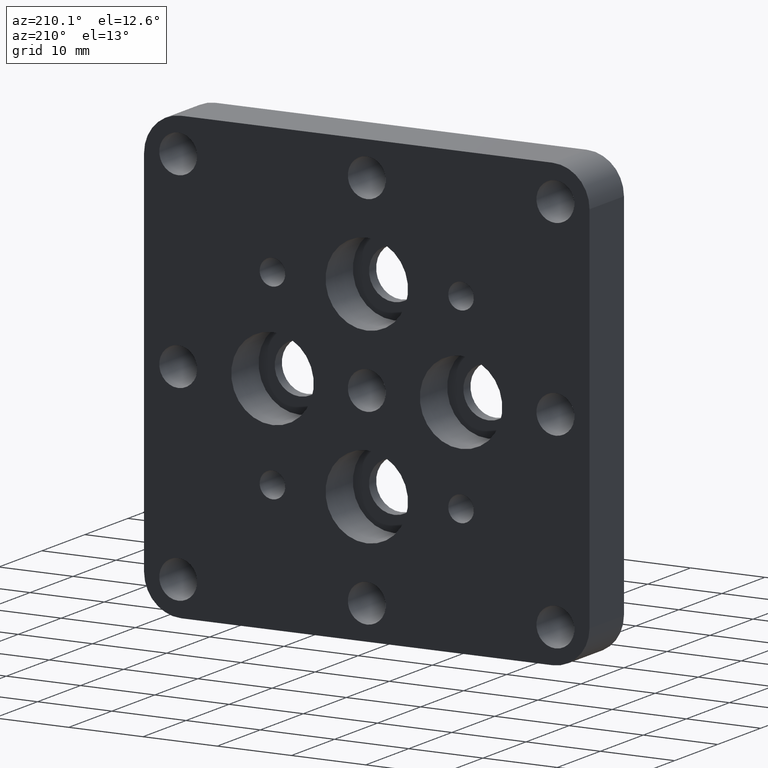
[diagram: clean part render]
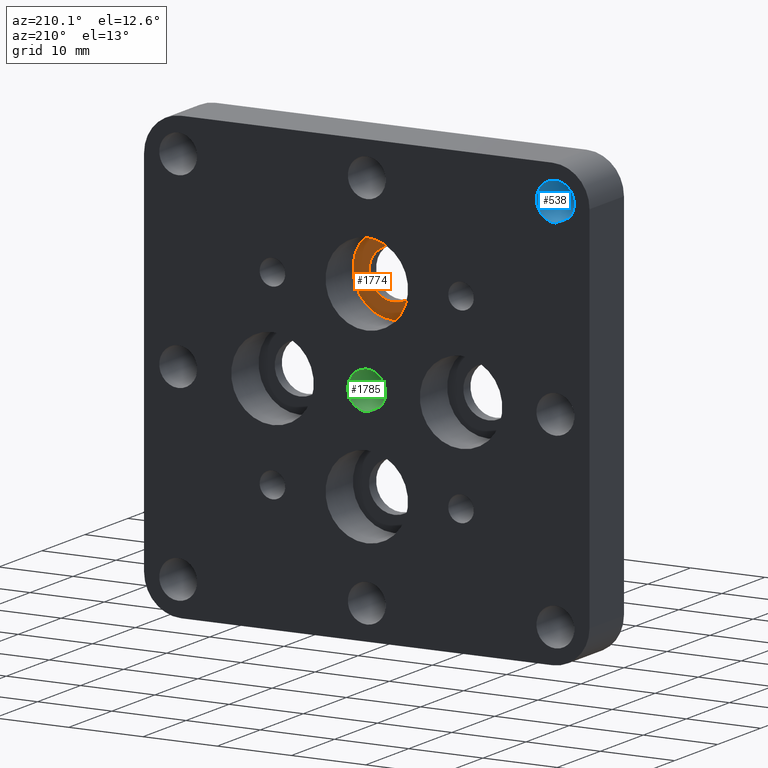
[diagram: same view with three faces highlighted in distinct colors, each labeled with its STEP entity id]
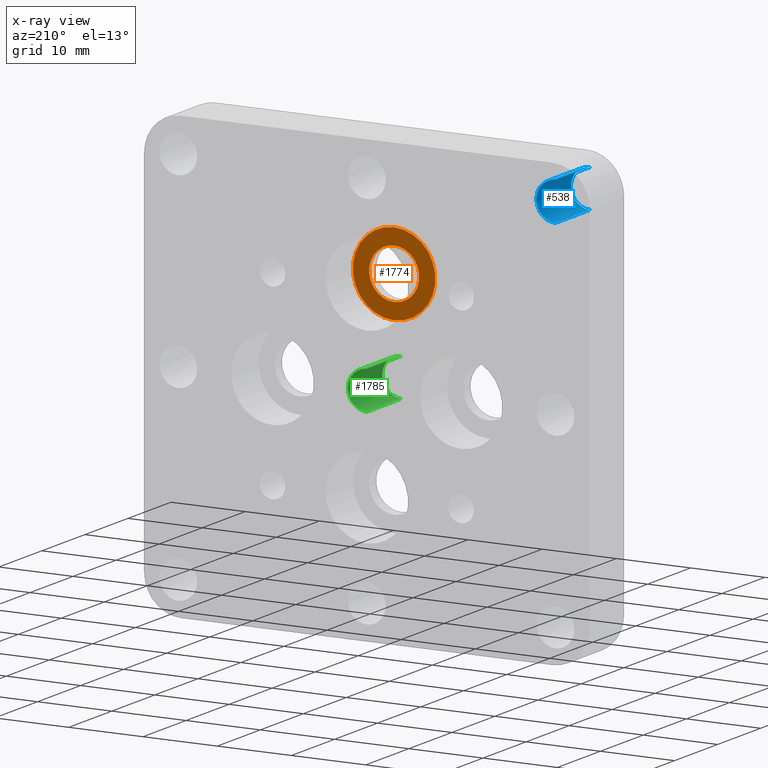
[diagram: x-ray of the same camera — body ghosted, the three highlighted faces saturated]
A machine part, auxiliary view with three faces highlighted in distinct colors.
The next image is the same camera in x-ray (body ghosted, the three faces saturated) — at least one of them is partly hidden behind the body in this view.
Their STEP definitions:

[orange] entity #1774 — the highlighted planar face has unit normal (0, -1, 0).
#76 = CIRCLE ( 'NONE', #1384, 5.556249999999998600 ) ;
#89 = ORIENTED_EDGE ( 'NONE', *, *, #1922, .T. ) ;
#117 = DIRECTION ( 'NONE',  ( -0.0000000000000000000, 1.000000000000000000, -0.0000000000000000000 ) ) ;
#123 = DIRECTION ( 'NONE',  ( 0.0000000000000000000, 0.0000000000000000000, 1.000000000000000000 ) ) ;
#175 = CARTESIAN_POINT ( 'NONE',  ( 0.0000000000000000000, 1.650000000000000400, 12.69999999999999900 ) ) ;
#205 = VERTEX_POINT ( 'NONE', #386 ) ;
#296 = FACE_BOUND ( 'NONE', #1335, .T. ) ;
#320 = CIRCLE ( 'NONE', #545, 5.556249999999998600 ) ;
#333 = VERTEX_POINT ( 'NONE', #1347 ) ;
#386 = CARTESIAN_POINT ( 'NONE',  ( 6.804443777762479200E-016, 1.650000000000000400, 7.143750000000001600 ) ) ;
#403 = PLANE ( 'NONE',  #915 ) ;
#517 = EDGE_CURVE ( 'NONE', #1441, #333, #1755, .T. ) ;
#543 = AXIS2_PLACEMENT_3D ( 'NONE', #1859, #1556, #637 ) ;
#545 = AXIS2_PLACEMENT_3D ( 'NONE', #1773, #861, #1920 ) ;
#584 = VERTEX_POINT ( 'NONE', #785 ) ;
#637 = DIRECTION ( 'NONE',  ( 0.0000000000000000000, 0.0000000000000000000, 1.000000000000000000 ) ) ;
#661 = CIRCLE ( 'NONE', #958, 3.378199999999997900 ) ;
#752 = ORIENTED_EDGE ( 'NONE', *, *, #1540, .T. ) ;
#785 = CARTESIAN_POINT ( 'NONE',  ( 0.0000000000000000000, 1.650000000000000400, 18.25624999999999800 ) ) ;
#786 = EDGE_CURVE ( 'NONE', #333, #1441, #661, .T. ) ;
#837 = ORIENTED_EDGE ( 'NONE', *, *, #517, .F. ) ;
#861 = DIRECTION ( 'NONE',  ( -0.0000000000000000000, 1.000000000000000000, -0.0000000000000000000 ) ) ;
#862 = EDGE_LOOP ( 'NONE', ( #752, #89 ) ) ;
#915 = AXIS2_PLACEMENT_3D ( 'NONE', #1758, #1589, #1594 ) ;
#958 = AXIS2_PLACEMENT_3D ( 'NONE', #1012, #117, #123 ) ;
#1012 = CARTESIAN_POINT ( 'NONE',  ( 0.0000000000000000000, 1.650000000000000400, 12.69999999999999900 ) ) ;
#1173 = CARTESIAN_POINT ( 'NONE',  ( 0.0000000000000000000, 1.650000000000000400, 16.07819999999999900 ) ) ;
#1190 = ORIENTED_EDGE ( 'NONE', *, *, #786, .F. ) ;
#1335 = EDGE_LOOP ( 'NONE', ( #837, #1190 ) ) ;
#1347 = CARTESIAN_POINT ( 'NONE',  ( 4.137101816879588000E-016, 1.650000000000000400, 9.321800000000001400 ) ) ;
#1368 = DIRECTION ( 'NONE',  ( 0.0000000000000000000, 0.0000000000000000000, 1.000000000000000000 ) ) ;
#1384 = AXIS2_PLACEMENT_3D ( 'NONE', #175, #1672, #1368 ) ;
#1441 = VERTEX_POINT ( 'NONE', #1173 ) ;
#1540 = EDGE_CURVE ( 'NONE', #584, #205, #76, .T. ) ;
#1556 = DIRECTION ( 'NONE',  ( -0.0000000000000000000, 1.000000000000000000, -0.0000000000000000000 ) ) ;
#1589 = DIRECTION ( 'NONE',  ( 0.0000000000000000000, -1.000000000000000000, 0.0000000000000000000 ) ) ;
#1594 = DIRECTION ( 'NONE',  ( 0.0000000000000000000, -0.0000000000000000000, -1.000000000000000000 ) ) ;
#1672 = DIRECTION ( 'NONE',  ( -0.0000000000000000000, 1.000000000000000000, -0.0000000000000000000 ) ) ;
#1755 = CIRCLE ( 'NONE', #543, 3.378199999999997900 ) ;
#1758 = CARTESIAN_POINT ( 'NONE',  ( 3.378199999999998800, 1.650000000000000400, 12.69999999999999900 ) ) ;
#1773 = CARTESIAN_POINT ( 'NONE',  ( 0.0000000000000000000, 1.650000000000000400, 12.69999999999999900 ) ) ;
#1774 = ADVANCED_FACE ( 'NONE', ( #296, #1845 ), #403, .F. ) ;
#1845 = FACE_OUTER_BOUND ( 'NONE', #862, .T. ) ;
#1859 = CARTESIAN_POINT ( 'NONE',  ( 0.0000000000000000000, 1.650000000000000400, 12.69999999999999900 ) ) ;
#1920 = DIRECTION ( 'NONE',  ( 0.0000000000000000000, 0.0000000000000000000, 1.000000000000000000 ) ) ;
#1922 = EDGE_CURVE ( 'NONE', #205, #584, #320, .T. ) ;

[blue] entity #538 — the highlighted cylindrical surface (edge-blend (fillet) strip) has radius 2.5527 mm, axis along (-0, 1, -0).
#36 = DIRECTION ( 'NONE',  ( 0.0000000000000000000, 0.0000000000000000000, 1.000000000000000000 ) ) ;
#42 = DIRECTION ( 'NONE',  ( 0.0000000000000000000, 0.0000000000000000000, 1.000000000000000000 ) ) ;
#113 = CARTESIAN_POINT ( 'NONE',  ( -25.39999999999999500, 8.000000000000000000, 22.84730000000000800 ) ) ;
#181 = ORIENTED_EDGE ( 'NONE', *, *, #506, .F. ) ;
#209 = DIRECTION ( 'NONE',  ( -0.0000000000000000000, 1.000000000000000000, -0.0000000000000000000 ) ) ;
#250 = EDGE_CURVE ( 'NONE', #883, #779, #251, .T. ) ;
#251 = LINE ( 'NONE', #113, #602 ) ;
#287 = DIRECTION ( 'NONE',  ( -0.0000000000000000000, 1.000000000000000000, -0.0000000000000000000 ) ) ;
#335 = CARTESIAN_POINT ( 'NONE',  ( -25.39999999999999500, 8.000000000000000000, 25.40000000000000600 ) ) ;
#336 = ORIENTED_EDGE ( 'NONE', *, *, #1909, .T. ) ;
#405 = CARTESIAN_POINT ( 'NONE',  ( -25.39999999999999500, 0.0000000000000000000, 22.84730000000000800 ) ) ;
#458 = EDGE_CURVE ( 'NONE', #527, #779, #1808, .T. ) ;
#470 = CARTESIAN_POINT ( 'NONE',  ( -25.39999999999999500, 8.000000000000000000, 25.40000000000000600 ) ) ;
#506 = EDGE_CURVE ( 'NONE', #1511, #883, #902, .T. ) ;
#527 = VERTEX_POINT ( 'NONE', #936 ) ;
#538 = ADVANCED_FACE ( 'NONE', ( #573 ), #956, .F. ) ;
#561 = ORIENTED_EDGE ( 'NONE', *, *, #250, .F. ) ;
#573 = FACE_OUTER_BOUND ( 'NONE', #1182, .T. ) ;
#602 = VECTOR ( 'NONE', #1610, 1000.000000000000000 ) ;
#750 = DIRECTION ( 'NONE',  ( -0.0000000000000000000, 1.000000000000000000, -0.0000000000000000000 ) ) ;
#779 = VERTEX_POINT ( 'NONE', #1593 ) ;
#883 = VERTEX_POINT ( 'NONE', #405 ) ;
#895 = CARTESIAN_POINT ( 'NONE',  ( -25.39999999999999500, 0.0000000000000000000, 25.40000000000000600 ) ) ;
#902 = CIRCLE ( 'NONE', #1722, 2.552699999999998000 ) ;
#907 = DIRECTION ( 'NONE',  ( 0.0000000000000000000, 0.0000000000000000000, 1.000000000000000000 ) ) ;
#936 = CARTESIAN_POINT ( 'NONE',  ( -25.39999999999999500, 8.000000000000000000, 27.95270000000000400 ) ) ;
#956 = CYLINDRICAL_SURFACE ( 'NONE', #1601, 2.552699999999998000 ) ;
#1021 = ORIENTED_EDGE ( 'NONE', *, *, #458, .T. ) ;
#1045 = CARTESIAN_POINT ( 'NONE',  ( -25.39999999999999500, 0.0000000000000000000, 27.95270000000000400 ) ) ;
#1182 = EDGE_LOOP ( 'NONE', ( #561, #181, #336, #1021 ) ) ;
#1423 = AXIS2_PLACEMENT_3D ( 'NONE', #470, #750, #907 ) ;
#1473 = VECTOR ( 'NONE', #287, 1000.000000000000000 ) ;
#1511 = VERTEX_POINT ( 'NONE', #1045 ) ;
#1593 = CARTESIAN_POINT ( 'NONE',  ( -25.39999999999999500, 8.000000000000000000, 22.84730000000000800 ) ) ;
#1601 = AXIS2_PLACEMENT_3D ( 'NONE', #335, #209, #36 ) ;
#1610 = DIRECTION ( 'NONE',  ( -0.0000000000000000000, 1.000000000000000000, -0.0000000000000000000 ) ) ;
#1722 = AXIS2_PLACEMENT_3D ( 'NONE', #895, #1847, #42 ) ;
#1787 = CARTESIAN_POINT ( 'NONE',  ( -25.39999999999999500, 8.000000000000000000, 27.95270000000000400 ) ) ;
#1808 = CIRCLE ( 'NONE', #1423, 2.552699999999998000 ) ;
#1844 = LINE ( 'NONE', #1787, #1473 ) ;
#1847 = DIRECTION ( 'NONE',  ( -0.0000000000000000000, 1.000000000000000000, -0.0000000000000000000 ) ) ;
#1909 = EDGE_CURVE ( 'NONE', #1511, #527, #1844, .T. ) ;

[green] entity #1785 — the highlighted cylindrical surface (edge-blend (fillet) strip) has radius 2.5527 mm, axis along (-0, 1, -0).
#48 = CARTESIAN_POINT ( 'NONE',  ( 0.0000000000000000000, 0.0000000000000000000, 2.552699999999997100 ) ) ;
#70 = VERTEX_POINT ( 'NONE', #1408 ) ;
#80 = CARTESIAN_POINT ( 'NONE',  ( 0.0000000000000000000, 8.000000000000000000, 0.0000000000000000000 ) ) ;
#96 = ORIENTED_EDGE ( 'NONE', *, *, #1419, .T. ) ;
#168 = VERTEX_POINT ( 'NONE', #1737 ) ;
#197 = FACE_OUTER_BOUND ( 'NONE', #801, .T. ) ;
#279 = AXIS2_PLACEMENT_3D ( 'NONE', #1879, #813, #1735 ) ;
#298 = CIRCLE ( 'NONE', #441, 2.552699999999997100 ) ;
#423 = ORIENTED_EDGE ( 'NONE', *, *, #926, .F. ) ;
#441 = AXIS2_PLACEMENT_3D ( 'NONE', #1041, #748, #586 ) ;
#445 = DIRECTION ( 'NONE',  ( -0.0000000000000000000, 1.000000000000000000, -0.0000000000000000000 ) ) ;
#586 = DIRECTION ( 'NONE',  ( 0.0000000000000000000, 0.0000000000000000000, 1.000000000000000000 ) ) ;
#592 = LINE ( 'NONE', #899, #954 ) ;
#596 = VECTOR ( 'NONE', #1706, 1000.000000000000000 ) ;
#611 = VERTEX_POINT ( 'NONE', #48 ) ;
#645 = AXIS2_PLACEMENT_3D ( 'NONE', #80, #1731, #678 ) ;
#654 = EDGE_CURVE ( 'NONE', #168, #70, #1477, .T. ) ;
#678 = DIRECTION ( 'NONE',  ( 0.0000000000000000000, 0.0000000000000000000, 1.000000000000000000 ) ) ;
#685 = LINE ( 'NONE', #1080, #596 ) ;
#748 = DIRECTION ( 'NONE',  ( -0.0000000000000000000, 1.000000000000000000, 0.0000000000000000000 ) ) ;
#801 = EDGE_LOOP ( 'NONE', ( #992, #423, #96, #1701 ) ) ;
#813 = DIRECTION ( 'NONE',  ( -0.0000000000000000000, 1.000000000000000000, -0.0000000000000000000 ) ) ;
#899 = CARTESIAN_POINT ( 'NONE',  ( 0.0000000000000000000, 8.000000000000000000, 2.552699999999997100 ) ) ;
#926 = EDGE_CURVE ( 'NONE', #611, #1486, #298, .T. ) ;
#954 = VECTOR ( 'NONE', #445, 1000.000000000000000 ) ;
#992 = ORIENTED_EDGE ( 'NONE', *, *, #1736, .F. ) ;
#1041 = CARTESIAN_POINT ( 'NONE',  ( 0.0000000000000000000, 0.0000000000000000000, 0.0000000000000000000 ) ) ;
#1080 = CARTESIAN_POINT ( 'NONE',  ( 3.126155884183444800E-016, 8.000000000000000000, -2.552699999999997100 ) ) ;
#1293 = CYLINDRICAL_SURFACE ( 'NONE', #645, 2.552699999999997100 ) ;
#1408 = CARTESIAN_POINT ( 'NONE',  ( 3.126155884183446300E-016, 8.000000000000000000, -2.552699999999998400 ) ) ;
#1419 = EDGE_CURVE ( 'NONE', #611, #168, #592, .T. ) ;
#1477 = CIRCLE ( 'NONE', #279, 2.552699999999998400 ) ;
#1486 = VERTEX_POINT ( 'NONE', #1816 ) ;
#1701 = ORIENTED_EDGE ( 'NONE', *, *, #654, .T. ) ;
#1706 = DIRECTION ( 'NONE',  ( -0.0000000000000000000, 1.000000000000000000, -0.0000000000000000000 ) ) ;
#1731 = DIRECTION ( 'NONE',  ( -0.0000000000000000000, 1.000000000000000000, -0.0000000000000000000 ) ) ;
#1735 = DIRECTION ( 'NONE',  ( 0.0000000000000000000, 0.0000000000000000000, 1.000000000000000000 ) ) ;
#1736 = EDGE_CURVE ( 'NONE', #1486, #70, #685, .T. ) ;
#1737 = CARTESIAN_POINT ( 'NONE',  ( 0.0000000000000000000, 8.000000000000000000, 2.552699999999998400 ) ) ;
#1785 = ADVANCED_FACE ( 'NONE', ( #197 ), #1293, .F. ) ;
#1816 = CARTESIAN_POINT ( 'NONE',  ( 3.126155884183444800E-016, 0.0000000000000000000, -2.552699999999997100 ) ) ;
#1879 = CARTESIAN_POINT ( 'NONE',  ( 0.0000000000000000000, 8.000000000000000000, 0.0000000000000000000 ) ) ;